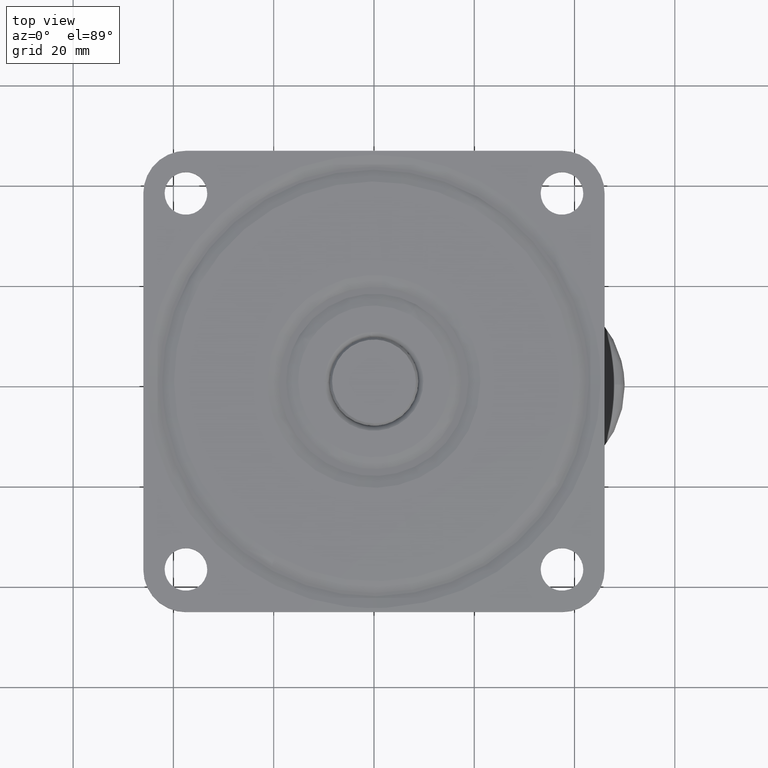
[diagram: clean part render]
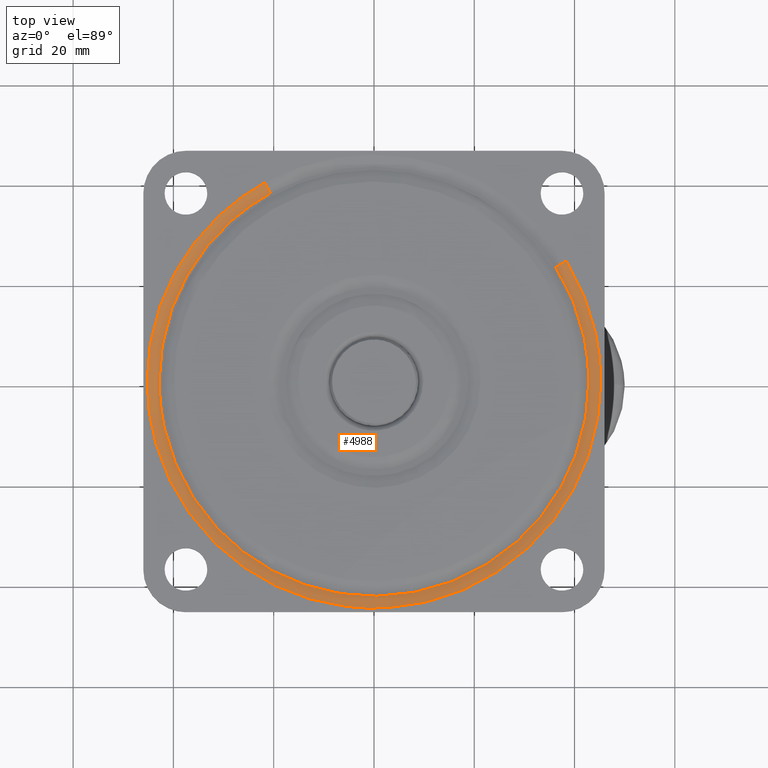
[diagram: same view with one face highlighted and labeled with its STEP entity id]
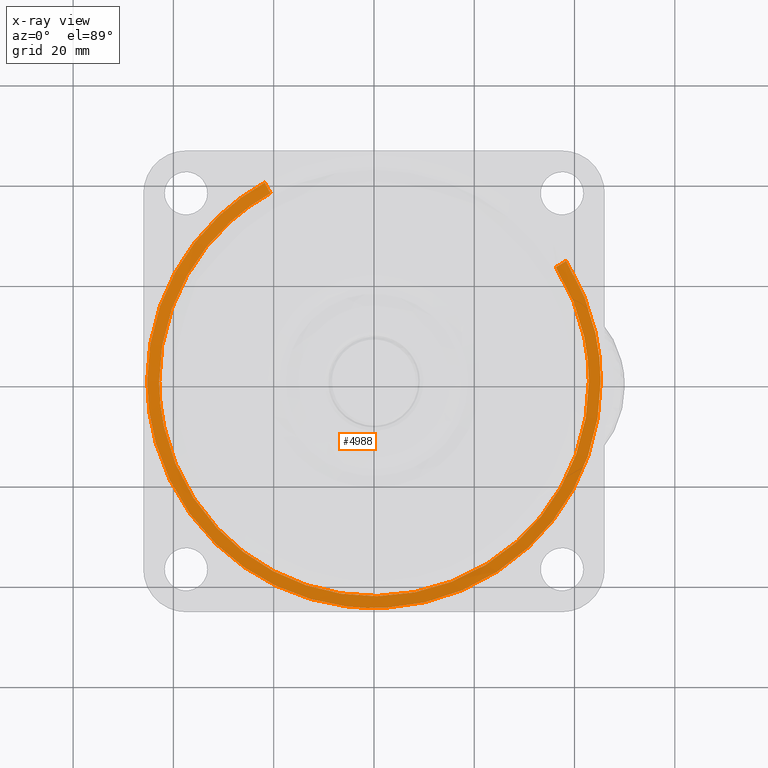
[diagram: x-ray of the same camera — body ghosted, the highlighted face saturated]
A machine part, top view. The second image highlights one B-rep face of the part: STEP entity #4988.
The next image is the same camera in x-ray: the body ghosted, the highlighted face saturated — about 0% of this face is hidden behind the body in this view.
In plain terms, the highlighted face is a freeform B-spline surface patch.
Its self-contained STEP definition (entity closure, byte-faithful):
#4827=CARTESIAN_POINT('',(36.217200783751970,22.700217033072100,-0.659311825616762));
#4828=CARTESIAN_POINT('',(36.866870615646803,21.663697306824488,-0.659311825616762));
#4829=CARTESIAN_POINT('',(37.456196172154435,20.591718099086922,-0.659311825616762));
#4830=CARTESIAN_POINT('',(58.047914271241375,-16.864478073067517,-0.659311825616762));
#4831=CARTESIAN_POINT('',(20.591718099086922,-37.456196172154435,-0.659311825616762));
#4832=CARTESIAN_POINT('',(-16.864478073067517,-58.047914271241375,-0.659311825616762));
#4833=CARTESIAN_POINT('',(-37.456196172154435,-20.591718099086922,-0.659311825616762));
#4834=CARTESIAN_POINT('',(-58.047914271241375,16.864478073067517,-0.659311825616762));
#4835=CARTESIAN_POINT('',(-20.591718099086933,37.456196172154435,-0.659311825616762));
#4836=CARTESIAN_POINT('',(37.242628605392973,23.342934681020321,0.032573382372714));
#4837=CARTESIAN_POINT('',(37.910692722491767,22.277067679390477,0.032573382372714));
#4838=CARTESIAN_POINT('',(38.516704019712911,21.174737221969142,0.032573382372714));
#4839=CARTESIAN_POINT('',(59.691441241682071,-17.341966797743780,0.032573382372714));
#4840=CARTESIAN_POINT('',(21.174737221969142,-38.516704019712911,0.032573382372714));
#4841=CARTESIAN_POINT('',(-17.341966797743780,-59.691441241682071,0.032573382372714));
#4842=CARTESIAN_POINT('',(-38.516704019712911,-21.174737221969142,0.032573382372714));
#4843=CARTESIAN_POINT('',(-59.691441241682071,17.341966797743780,0.032573382372714));
#4844=CARTESIAN_POINT('',(-21.174737221969153,38.516704019712911,0.032573382372714));
#4845=CARTESIAN_POINT('',(38.423457015915631,24.083054309749532,-0.001493221308415));
#4846=CARTESIAN_POINT('',(39.112703018371647,22.983392538940034,-0.001493221308415));
#4847=CARTESIAN_POINT('',(39.737928731536392,21.846111188666878,-0.001493221308415));
#4848=CARTESIAN_POINT('',(61.584039920203260,-17.891817542869521,-0.001493221308415));
#4849=CARTESIAN_POINT('',(21.846111188666878,-39.737928731536392,-0.001493221308415));
#4850=CARTESIAN_POINT('',(-17.891817542869521,-61.584039920203260,-0.001493221308415));
#4851=CARTESIAN_POINT('',(-39.737928731536392,-21.846111188666878,-0.001493221308415));
#4852=CARTESIAN_POINT('',(-61.584039920203260,17.891817542869521,-0.001493221308415));
#4853=CARTESIAN_POINT('',(-21.846111188666878,39.737928731536392,-0.001493221308415));
#4861=(BOUNDED_SURFACE()B_SPLINE_SURFACE(2,2,((#4827,#4836,#4845),(#4828,#4837,#4846),(#4829,#4838,#4847),(#4830,#4839,#4848),(#4831,#4840,#4849),(#4832,#4841,#4850),(#4833,#4842,#4851),(#4834,#4843,#4852),(#4835,#4844,#4853)),.UNSPECIFIED.,.F.,.F.,.U.)B_SPLINE_SURFACE_WITH_KNOTS((3,2,2,2,3),(3,3),(0.0,3.005335679591108,78.138799322223392,153.272262964855710,228.405726607487910),(0.0,2.735869939103540),.UNSPECIFIED.)GEOMETRIC_REPRESENTATION_ITEM()RATIONAL_B_SPLINE_SURFACE(((0.922241965588989,0.888067685907131,0.921632806681968),(0.932411060138945,0.897859958002429,0.931795184345518),(0.943464422863566,0.908503731136389,0.942841246107261),(0.667130091215080,0.642409149019821,0.666689438704819),(0.943464422863566,0.908503731136389,0.942841246107261),(0.667130091215080,0.642409149019821,0.666689438704819),(0.943464422863566,0.908503731136389,0.942841246107261),(0.667130091215080,0.642409149019821,0.666689438704819),(0.943464422863566,0.908503731136389,0.942841246107261)))REPRESENTATION_ITEM('')SURFACE());
#4862=CARTESIAN_POINT('',(38.319923120380160,24.018164280611082,-7.854863E-016));
#4863=VERTEX_POINT('',#4862);
#4864=CARTESIAN_POINT('',(45.224868417407613,0.0,0.0));
#4865=VERTEX_POINT('',#4864);
#4866=CARTESIAN_POINT('',(38.319923120380167,24.018164280611078,-7.854863E-016));
#4867=CARTESIAN_POINT('',(45.224868417407599,13.001628219143482,0.0));
#4868=CARTESIAN_POINT('',(45.224868417407613,0.0,0.0));
#4876=(BOUNDED_CURVE()B_SPLINE_CURVE(2,(#4866,#4867,#4868),.UNSPECIFIED.,.F.,.U.)B_SPLINE_CURVE_WITH_KNOTS((3,3),(0.409173271053749,0.500000000000000),.UNSPECIFIED.)CURVE()GEOMETRIC_REPRESENTATION_ITEM()RATIONAL_B_SPLINE_CURVE((0.864498809754002,0.893589868018542,1.0))REPRESENTATION_ITEM(''));
#4877=EDGE_CURVE('',#4863,#4865,#4876,.T.);
#4878=ORIENTED_EDGE('',*,*,#4877,.F.);
#4879=CARTESIAN_POINT('',(36.307650263936750,22.756911749120679,-0.599999999712725));
#4880=VERTEX_POINT('',#4879);
#4881=CARTESIAN_POINT('',(36.307650263936750,22.756911749120672,-0.599999999712725));
#4882=CARTESIAN_POINT('',(37.249565218293974,23.347285274641965,-5.342280E-011));
#4883=CARTESIAN_POINT('',(38.319923120380160,24.018164280611085,-7.854863E-016));
#4891=(BOUNDED_CURVE()B_SPLINE_CURVE(2,(#4881,#4882,#4883),.UNSPECIFIED.,.F.,.U.)B_SPLINE_CURVE_WITH_KNOTS((3,3),(-1.443739978409711,-0.564952266612081),.UNSPECIFIED.)CURVE()GEOMETRIC_REPRESENTATION_ITEM()RATIONAL_B_SPLINE_CURVE((0.919277688465473,0.891004263977077,0.918723851657397))REPRESENTATION_ITEM(''));
#4892=EDGE_CURVE('',#4880,#4863,#4891,.T.);
#4893=ORIENTED_EDGE('',*,*,#4892,.F.);
#4894=CARTESIAN_POINT('',(42.850000000000001,0.0,-0.600000000000000));
#4895=VERTEX_POINT('',#4894);
#4896=CARTESIAN_POINT('',(36.307650263936743,22.756911749120682,-0.599999999712725));
#4897=CARTESIAN_POINT('',(42.850000000000009,12.318880931831412,-0.600000000000000));
#4898=CARTESIAN_POINT('',(42.850000000000001,0.0,-0.600000000000000));
#4906=(BOUNDED_CURVE()B_SPLINE_CURVE(2,(#4896,#4897,#4898),.UNSPECIFIED.,.F.,.U.)B_SPLINE_CURVE_WITH_KNOTS((3,3),(0.409173271053532,0.500000000000000),.UNSPECIFIED.)CURVE()GEOMETRIC_REPRESENTATION_ITEM()RATIONAL_B_SPLINE_CURVE((0.864498809753863,0.893589868018288,1.0))REPRESENTATION_ITEM(''));
#4907=EDGE_CURVE('',#4880,#4895,#4906,.T.);
#4908=ORIENTED_EDGE('',*,*,#4907,.T.);
#4909=CARTESIAN_POINT('',(-42.850000000000001,0.0,-0.600000000000000));
#4910=VERTEX_POINT('',#4909);
#4911=CARTESIAN_POINT('',(42.850000000000001,0.0,-0.600000000000000));
#4912=CARTESIAN_POINT('',(42.849999999999994,-42.849999999999994,-0.600000000000000));
#4913=CARTESIAN_POINT('',(0.0,-42.850000000000001,-0.600000000000000));
#4914=CARTESIAN_POINT('',(-42.849999999999994,-42.849999999999994,-0.600000000000000));
#4915=CARTESIAN_POINT('',(-42.850000000000001,0.0,-0.600000000000000));
#4923=(BOUNDED_CURVE()B_SPLINE_CURVE(2,(#4911,#4912,#4913,#4914,#4915),.UNSPECIFIED.,.F.,.U.)B_SPLINE_CURVE_WITH_KNOTS((3,2,3),(0.500000000000000,0.750000000000000,1.0),.UNSPECIFIED.)CURVE()GEOMETRIC_REPRESENTATION_ITEM()RATIONAL_B_SPLINE_CURVE((1.0,0.707106781186548,1.0,0.707106781186548,1.0))REPRESENTATION_ITEM(''));
#4924=EDGE_CURVE('',#4895,#4910,#4923,.T.);
#4925=ORIENTED_EDGE('',*,*,#4924,.T.);
#4926=CARTESIAN_POINT('',(-20.643144935784630,37.549741240649212,-0.599999999499161));
#4927=VERTEX_POINT('',#4926);
#4928=CARTESIAN_POINT('',(-42.850000000000001,0.0,-0.600000000000000));
#4929=CARTESIAN_POINT('',(-42.850000000000001,25.341419357345501,-0.600000000000000));
#4930=CARTESIAN_POINT('',(-20.643144935784623,37.549741240649212,-0.599999999499161));
#4938=(BOUNDED_CURVE()B_SPLINE_CURVE(2,(#4928,#4929,#4930),.UNSPECIFIED.,.F.,.U.)B_SPLINE_CURVE_WITH_KNOTS((3,3),(0.0,0.167949183896048),.UNSPECIFIED.)CURVE()GEOMETRIC_REPRESENTATION_ITEM()RATIONAL_B_SPLINE_CURVE((1.0,0.803235291726376,0.870842360845545))REPRESENTATION_ITEM(''));
#4939=EDGE_CURVE('',#4910,#4927,#4938,.T.);
#4940=ORIENTED_EDGE('',*,*,#4939,.T.);
#4941=CARTESIAN_POINT('',(-21.787246520518000,39.630854297494061,-8.268803E-016));
#4942=VERTEX_POINT('',#4941);
#4943=CARTESIAN_POINT('',(-20.643144935784630,37.549741240649212,-0.599999999499161));
#4944=CARTESIAN_POINT('',(-21.178681847821760,38.523879267501883,-4.290611E-010));
#4945=CARTESIAN_POINT('',(-21.787246520517996,39.630854297494061,-8.268803E-016));
#4953=(BOUNDED_CURVE()B_SPLINE_CURVE(2,(#4943,#4944,#4945),.UNSPECIFIED.,.F.,.U.)B_SPLINE_CURVE_WITH_KNOTS((3,3),(-1.443739978086990,-0.564952267145336),.UNSPECIFIED.)CURVE()GEOMETRIC_REPRESENTATION_ITEM()RATIONAL_B_SPLINE_CURVE((0.940431952114192,0.911507904382407,0.939865370493396))REPRESENTATION_ITEM(''));
#4954=EDGE_CURVE('',#4927,#4942,#4953,.T.);
#4955=ORIENTED_EDGE('',*,*,#4954,.T.);
#4956=CARTESIAN_POINT('',(-45.224868417407613,0.0,0.0));
#4957=VERTEX_POINT('',#4956);
#4958=CARTESIAN_POINT('',(-45.224868417407613,0.0,0.0));
#4959=CARTESIAN_POINT('',(-45.224868417407606,26.745912624198343,0.0));
#4960=CARTESIAN_POINT('',(-21.787246520518003,39.630854297494061,-8.268803E-016));
#4968=(BOUNDED_CURVE()B_SPLINE_CURVE(2,(#4958,#4959,#4960),.UNSPECIFIED.,.F.,.U.)B_SPLINE_CURVE_WITH_KNOTS((3,3),(0.0,0.167949183896119),.UNSPECIFIED.)CURVE()GEOMETRIC_REPRESENTATION_ITEM()RATIONAL_B_SPLINE_CURVE((1.0,0.803235291726293,0.870842360845602))REPRESENTATION_ITEM(''));
#4969=EDGE_CURVE('',#4957,#4942,#4968,.T.);
#4970=ORIENTED_EDGE('',*,*,#4969,.F.);
#4971=CARTESIAN_POINT('',(45.224868417407613,0.0,0.0));
#4972=CARTESIAN_POINT('',(45.224868417407599,-45.224868417407599,0.0));
#4973=CARTESIAN_POINT('',(0.0,-45.224868417407613,0.0));
#4974=CARTESIAN_POINT('',(-45.224868417407599,-45.224868417407599,0.0));
#4975=CARTESIAN_POINT('',(-45.224868417407613,0.0,0.0));
#4983=(BOUNDED_CURVE()B_SPLINE_CURVE(2,(#4971,#4972,#4973,#4974,#4975),.UNSPECIFIED.,.F.,.U.)B_SPLINE_CURVE_WITH_KNOTS((3,2,3),(0.500000000000000,0.750000000000000,1.0),.UNSPECIFIED.)CURVE()GEOMETRIC_REPRESENTATION_ITEM()RATIONAL_B_SPLINE_CURVE((1.0,0.707106781186548,1.0,0.707106781186548,1.0))REPRESENTATION_ITEM(''));
#4984=EDGE_CURVE('',#4865,#4957,#4983,.T.);
#4985=ORIENTED_EDGE('',*,*,#4984,.F.);
#4986=EDGE_LOOP('',(#4878,#4893,#4908,#4925,#4940,#4955,#4970,#4985));
#4987=FACE_OUTER_BOUND('',#4986,.T.);
#4988=ADVANCED_FACE('',(#4987),#4861,.T.);